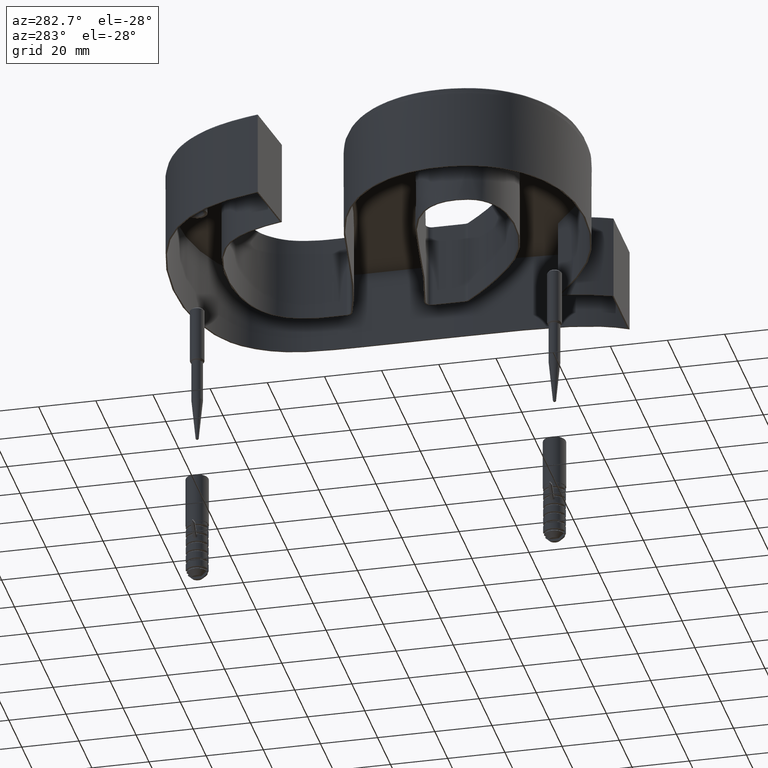
[diagram: clean part render]
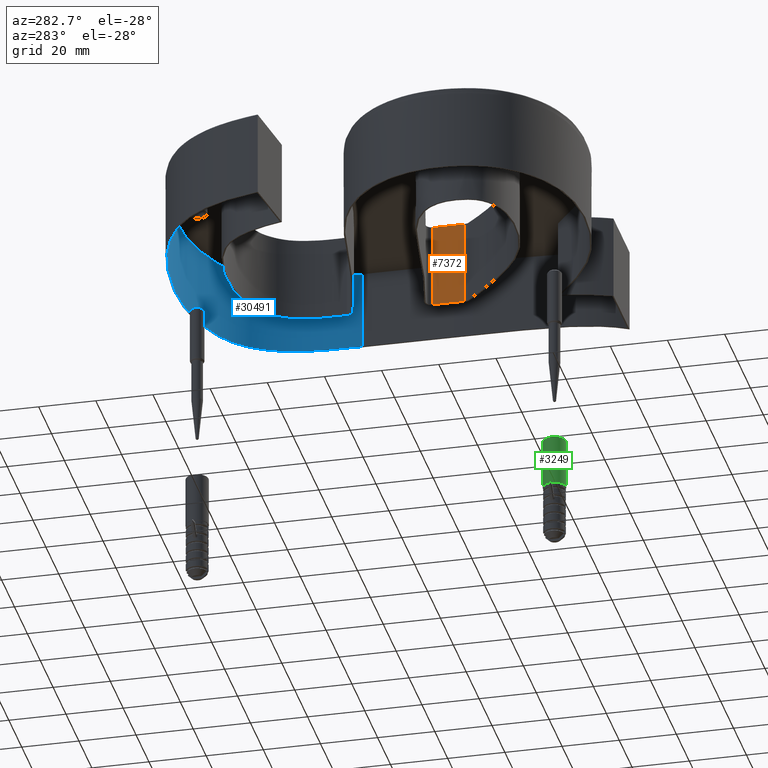
[diagram: same view with three faces highlighted in distinct colors, each labeled with its STEP entity id]
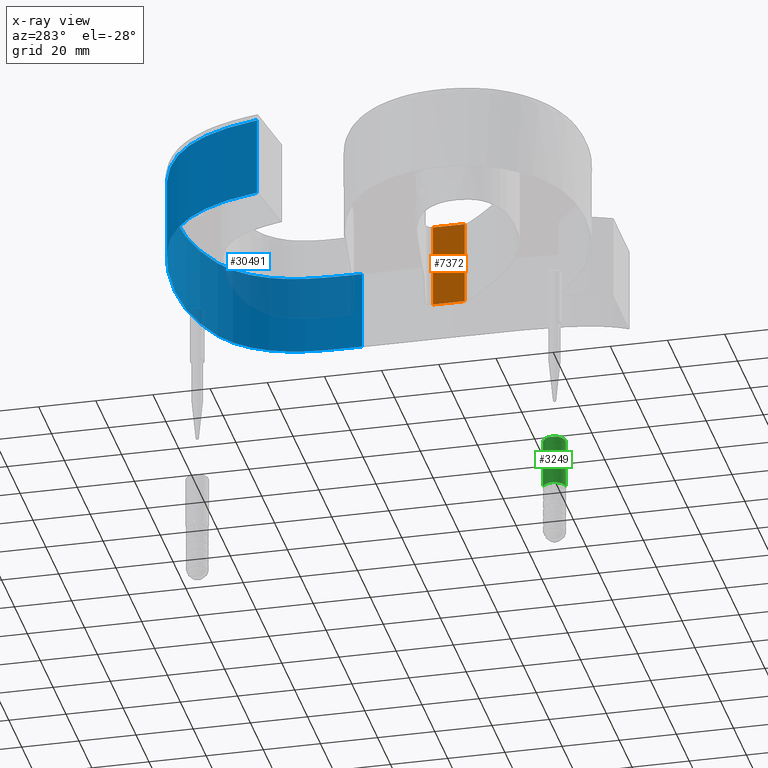
[diagram: x-ray of the same camera — body ghosted, the three highlighted faces saturated]
A machine part, auxiliary view with three faces highlighted in distinct colors.
The next image is the same camera in x-ray (body ghosted, the three faces saturated) — at least one of them is partly hidden behind the body in this view.
Their STEP definitions:

[orange] entity #7372 — the highlighted planar face has unit normal (1, -0, 0).
#469 = CARTESIAN_POINT ( 'NONE',  ( 49.12605448390368700, 53.53852045932474400, 2.000000000000000000 ) ) ;
#839 = FACE_OUTER_BOUND ( 'NONE', #13745, .T. ) ;
#1097 = CARTESIAN_POINT ( 'NONE',  ( 49.12605448390387900, 64.74009537403854600, 1.750000000000000000 ) ) ;
#2037 = ORIENTED_EDGE ( 'NONE', *, *, #12126, .T. ) ;
#2122 = VECTOR ( 'NONE', #24508, 1000.000000000000000 ) ;
#2450 = CARTESIAN_POINT ( 'NONE',  ( 49.12605448390387900, 64.74009537403854600, 1.750000000000000000 ) ) ;
#6886 = LINE ( 'NONE', #15090, #16423 ) ;
#7372 = ADVANCED_FACE ( 'NONE', ( #839 ), #8905, .F. ) ;
#8809 = CARTESIAN_POINT ( 'NONE',  ( 49.12605448390277000, -8.437679609479788300E-013, 2.000000000000000000 ) ) ;
#8905 = PLANE ( 'NONE',  #12277 ) ;
#9987 = DIRECTION ( 'NONE',  ( -0.0000000000000000000, -0.0000000000000000000, 1.000000000000000000 ) ) ;
#10645 = DIRECTION ( 'NONE',  ( 0.0000000000000000000, 0.0000000000000000000, -1.000000000000000000 ) ) ;
#11162 = DIRECTION ( 'NONE',  ( 1.000000000000000000, -1.717556945723084700E-014, 0.0000000000000000000 ) ) ;
#11548 = ORIENTED_EDGE ( 'NONE', *, *, #30105, .T. ) ;
#11678 = ORIENTED_EDGE ( 'NONE', *, *, #11878, .T. ) ;
#11878 = EDGE_CURVE ( 'NONE', #14575, #29408, #20471, .T. ) ;
#12052 = CARTESIAN_POINT ( 'NONE',  ( 49.12605448390368700, 53.53852045932474400, 1.750000000000000000 ) ) ;
#12126 = EDGE_CURVE ( 'NONE', #29408, #30045, #6886, .T. ) ;
#12277 = AXIS2_PLACEMENT_3D ( 'NONE', #8809, #11162, #22980 ) ;
#13745 = EDGE_LOOP ( 'NONE', ( #11548, #11678, #2037, #20247 ) ) ;
#13774 = CARTESIAN_POINT ( 'NONE',  ( 49.12605448390279900, -8.216499045511294300E-013, -28.00000000000000000 ) ) ;
#14099 = VECTOR ( 'NONE', #9987, 1000.000000000000000 ) ;
#14574 = CARTESIAN_POINT ( 'NONE',  ( 49.12605448390368700, 53.53852045932474400, -28.00000000000000000 ) ) ;
#14575 = VERTEX_POINT ( 'NONE', #12052 ) ;
#15090 = CARTESIAN_POINT ( 'NONE',  ( 49.12605448390387900, 64.74009537403854600, 2.000000000000000000 ) ) ;
#16150 = DIRECTION ( 'NONE',  ( -1.672533878779865500E-014, -1.000000000000000000, 0.0000000000000000000 ) ) ;
#16423 = VECTOR ( 'NONE', #10645, 1000.000000000000000 ) ;
#18475 = VERTEX_POINT ( 'NONE', #14574 ) ;
#18681 = EDGE_CURVE ( 'NONE', #30045, #18475, #24009, .T. ) ;
#20247 = ORIENTED_EDGE ( 'NONE', *, *, #18681, .T. ) ;
#20471 = LINE ( 'NONE', #1097, #2122 ) ;
#21420 = VECTOR ( 'NONE', #16150, 1000.000000000000000 ) ;
#22980 = DIRECTION ( 'NONE',  ( 1.717556945723084700E-014, 1.000000000000000000, 0.0000000000000000000 ) ) ;
#24009 = LINE ( 'NONE', #13774, #21420 ) ;
#24508 = DIRECTION ( 'NONE',  ( 1.717556945723084700E-014, 1.000000000000000000, -0.0000000000000000000 ) ) ;
#26643 = LINE ( 'NONE', #469, #14099 ) ;
#28942 = CARTESIAN_POINT ( 'NONE',  ( 49.12605448390387900, 64.74009537403854600, -28.00000000000000000 ) ) ;
#29408 = VERTEX_POINT ( 'NONE', #2450 ) ;
#30045 = VERTEX_POINT ( 'NONE', #28942 ) ;
#30105 = EDGE_CURVE ( 'NONE', #18475, #14575, #26643, .T. ) ;

[blue] entity #30491 — the highlighted face is a freeform B-spline surface patch.
#20 = ORIENTED_EDGE ( 'NONE', *, *, #25818, .T. ) ;
#21 = CARTESIAN_POINT ( 'NONE',  ( 72.94550882655075000, 114.9862656011793400, -28.00000000000000000 ) ) ;
#587 = CARTESIAN_POINT ( 'NONE',  ( 0.6078224708122425000, 146.9854250579580500, -1.694065894508600700E-018 ) ) ;
#698 = CARTESIAN_POINT ( 'NONE',  ( -43.38858832290239300, 105.3928725544253400, 0.0000000000000000000 ) ) ;
#800 = CARTESIAN_POINT ( 'NONE',  ( 31.42106601708694000, 148.1051175848010900, -1.694065894508600700E-018 ) ) ;
#1229 = VECTOR ( 'NONE', #13315, 1000.000000000000000 ) ;
#1252 = CARTESIAN_POINT ( 'NONE',  ( 62.95495964838585200, 135.9527844761829600, 0.0000000000000000000 ) ) ;
#1257 = CARTESIAN_POINT ( 'NONE',  ( -43.38858832290239300, 105.3928725544253400, 0.0000000000000000000 ) ) ;
#1447 = CARTESIAN_POINT ( 'NONE',  ( 0.6078224708122425000, 146.9854250579580500, 0.0000000000000000000 ) ) ;
#1547 = CARTESIAN_POINT ( 'NONE',  ( 43.80662411551692500, 145.6841557657864100, -28.00000000000000000 ) ) ;
#1644 = CARTESIAN_POINT ( 'NONE',  ( -42.64401093891258700, 108.9266519777384600, 0.0000000000000000000 ) ) ;
#1854 = CARTESIAN_POINT ( 'NONE',  ( 72.94550882655075000, 114.9862656011793400, 0.0000000000000000000 ) ) ;
#1944 = CARTESIAN_POINT ( 'NONE',  ( 73.62605448390391400, 95.02528753252936200, 0.0000000000000000000 ) ) ;
#2079 = CARTESIAN_POINT ( 'NONE',  ( 0.6078224708122425000, 146.9854250579580500, -28.00000000000000000 ) ) ;
#2145 = CARTESIAN_POINT ( 'NONE',  ( 71.27015355212454000, 121.9809715691298600, -28.00000000000000000 ) ) ;
#2390 = CARTESIAN_POINT ( 'NONE',  ( 31.42106601708694000, 148.1051175848010900, -28.00000000000000000 ) ) ;
#2576 = VERTEX_POINT ( 'NONE', #1944 ) ;
#3034 = CARTESIAN_POINT ( 'NONE',  ( 48.98902429715126100, 144.0357169140962400, -1.694065894508600700E-018 ) ) ;
#3150 = DIRECTION ( 'NONE',  ( -0.0000000000000000000, -0.0000000000000000000, 1.000000000000000000 ) ) ;
#3349 = CARTESIAN_POINT ( 'NONE',  ( 58.78926860314933100, 139.3461222507065100, -1.694065894508600700E-018 ) ) ;
#3895 = CARTESIAN_POINT ( 'NONE',  ( 58.78926860314933100, 139.3461222507065100, 0.0000000000000000000 ) ) ;
#4003 = CARTESIAN_POINT ( 'NONE',  ( 73.59338994957296600, 96.82751244412108300, -28.00000000000000000 ) ) ;
#4553 = CARTESIAN_POINT ( 'NONE',  ( -43.38858832290239300, 105.3928725544253400, -28.00000000000000000 ) ) ;
#4744 = CARTESIAN_POINT ( 'NONE',  ( 69.24941761392143700, 127.0462464472014100, -28.00000000000000000 ) ) ;
#4914 = VERTEX_POINT ( 'NONE', #1257 ) ;
#5492 = CARTESIAN_POINT ( 'NONE',  ( -18.42771627827526600, 141.1355607838976600, -1.694065894508600700E-018 ) ) ;
#5797 = CARTESIAN_POINT ( 'NONE',  ( 73.59338994957296600, 96.82751244412108300, -1.694065894508600700E-018 ) ) ;
#5952 = CARTESIAN_POINT ( 'NONE',  ( -35.97067597714069400, 125.7152544806190100, 0.0000000000000000000 ) ) ;
#6044 = LINE ( 'NONE', #10440, #27394 ) ;
#6052 = CARTESIAN_POINT ( 'NONE',  ( -18.42771627827526600, 141.1355607838976600, 0.0000000000000000000 ) ) ;
#6254 = CARTESIAN_POINT ( 'NONE',  ( 62.95495964838585200, 135.9527844761829600, -28.00000000000000000 ) ) ;
#6649 = CARTESIAN_POINT ( 'NONE',  ( 73.48215971010782300, 107.7197031735398000, 0.0000000000000000000 ) ) ;
#7005 = CARTESIAN_POINT ( 'NONE',  ( -35.97067597714069400, 125.7152544806190100, -28.00000000000000000 ) ) ;
#7205 = CARTESIAN_POINT ( 'NONE',  ( 48.98902429715126100, 144.0357169140962400, -28.00000000000000000 ) ) ;
#7371 = B_SPLINE_SURFACE_WITH_KNOTS ( 'NONE', 3, 1, ( 
 ( #29822, #27255 ),
 ( #13325, #1644 ),
 ( #8516, #17762 ),
 ( #20012, #5952 ),
 ( #13235, #15712 ),
 ( #15413, #13141 ),
 ( #13036, #6052 ),
 ( #29717, #22492 ),
 ( #15599, #1447 ),
 ( #24885, #22291 ),
 ( #22393, #8613 ),
 ( #27153, #8224 ),
 ( #29608, #8328 ),
 ( #1547, #15509 ),
 ( #24773, #17964 ),
 ( #10575, #25075 ),
 ( #12941, #3895 ),
 ( #6254, #1252 ),
 ( #15316, #10971 ),
 ( #20314, #27641 ),
 ( #2145, #23088 ),
 ( #11165, #1854 ),
 ( #8812, #6649 ),
 ( #29921, #15804 ),
 ( #4003, #9128 ),
 ( #27945, #16094 ) ),
 .UNSPECIFIED., .F., .F., .F.,
 ( 4, 1, 1, 1, 1, 1, 1, 1, 1, 1, 1, 1, 1, 1, 1, 1, 1, 1, 1, 1, 1, 1, 1, 4 ),
 ( 2, 2 ),
 ( 0.003083470287366902500, 0.06538910513186288500, 0.1276947399763588600, 0.1900003748208548600, 0.2211531922431028400, 0.2523060096653508300, 0.3146116445098468000, 0.3769172793543428300, 0.4392229141988388000, 0.5015285490433347700, 0.5638341838878306900, 0.5949870013100786400, 0.6261398187323267100, 0.6572926361545747800, 0.6884454535768227400, 0.7195982709990707000, 0.7507510884213186600, 0.7819039058435666200, 0.8130567232658146800, 0.8442095406880627500, 0.8753623581103107100, 0.9376679929548066300, 0.9688208103770545900, 0.9999736277993026600 ),
 ( 0.0000000000000000000, 1.000000000000000000 ),
 .UNSPECIFIED. ) ;
#7768 = CARTESIAN_POINT ( 'NONE',  ( 54.05899203467933500, 141.9755628180749100, -1.694065894508600700E-018 ) ) ;
#7870 = CARTESIAN_POINT ( 'NONE',  ( 71.27015355212454000, 121.9809715691298600, -1.694065894508600700E-018 ) ) ;
#8020 = CARTESIAN_POINT ( 'NONE',  ( 73.62605448390391400, 95.02528753252936200, -28.00000000000000000 ) ) ;
#8224 = CARTESIAN_POINT ( 'NONE',  ( 31.42106601708694000, 148.1051175848010900, 0.0000000000000000000 ) ) ;
#8267 = EDGE_LOOP ( 'NONE', ( #23530, #16335, #20, #8665 ) ) ;
#8328 = CARTESIAN_POINT ( 'NONE',  ( 38.54371740045034800, 146.9393131774807600, 0.0000000000000000000 ) ) ;
#8516 = CARTESIAN_POINT ( 'NONE',  ( -40.69335720908227900, 115.9211496754336300, -28.00000000000000000 ) ) ;
#8613 = CARTESIAN_POINT ( 'NONE',  ( 22.36800376486144900, 148.6881520615430900, 0.0000000000000000000 ) ) ;
#8665 = ORIENTED_EDGE ( 'NONE', *, *, #29618, .T. ) ;
#8812 = CARTESIAN_POINT ( 'NONE',  ( 73.48215971010782300, 107.7197031735398000, -28.00000000000000000 ) ) ;
#9071 = CARTESIAN_POINT ( 'NONE',  ( -42.64401093891258700, 108.9266519777384600, -28.00000000000000000 ) ) ;
#9128 = CARTESIAN_POINT ( 'NONE',  ( 73.59338994957296600, 96.82751244412108300, 0.0000000000000000000 ) ) ;
#9173 = CARTESIAN_POINT ( 'NONE',  ( 11.42911205131125200, 148.2662833601964700, -28.00000000000000000 ) ) ;
#9365 = CARTESIAN_POINT ( 'NONE',  ( -24.55206825513793900, 137.3325213723907200, -28.00000000000000000 ) ) ;
#10440 = CARTESIAN_POINT ( 'NONE',  ( 73.62605448390391400, 95.02528753252936200, -28.00000000000000000 ) ) ;
#10575 = CARTESIAN_POINT ( 'NONE',  ( 54.05899203467933500, 141.9755628180749100, -28.00000000000000000 ) ) ;
#10624 = CARTESIAN_POINT ( 'NONE',  ( 73.57505782937015200, 100.4171166393361100, -1.694065894508600700E-018 ) ) ;
#10971 = CARTESIAN_POINT ( 'NONE',  ( 66.45398579461945600, 131.7730297934745600, 0.0000000000000000000 ) ) ;
#11165 = CARTESIAN_POINT ( 'NONE',  ( 72.94550882655075000, 114.9862656011793400, -28.00000000000000000 ) ) ;
#11629 = CARTESIAN_POINT ( 'NONE',  ( 71.27015355212454000, 121.9809715691298600, -28.00000000000000000 ) ) ;
#11737 = CARTESIAN_POINT ( 'NONE',  ( -9.964916380131144900, 144.4978598208765300, -28.00000000000000000 ) ) ;
#11909 = FACE_OUTER_BOUND ( 'NONE', #8267, .T. ) ;
#12393 = CARTESIAN_POINT ( 'NONE',  ( 22.36800376486144900, 148.6881520615430900, -1.694065894508600700E-018 ) ) ;
#12789 = CARTESIAN_POINT ( 'NONE',  ( -24.55206825513793900, 137.3325213723907200, -1.694065894508600700E-018 ) ) ;
#12941 = CARTESIAN_POINT ( 'NONE',  ( 58.78926860314933100, 139.3461222507065100, -28.00000000000000000 ) ) ;
#13023 = VERTEX_POINT ( 'NONE', #4553 ) ;
#13036 = CARTESIAN_POINT ( 'NONE',  ( -18.42771627827526600, 141.1355607838976600, -28.00000000000000000 ) ) ;
#13141 = CARTESIAN_POINT ( 'NONE',  ( -24.55206825513793900, 137.3325213723907200, 0.0000000000000000000 ) ) ;
#13235 = CARTESIAN_POINT ( 'NONE',  ( -30.15048796198508500, 132.7248357069183000, -28.00000000000000000 ) ) ;
#13315 = DIRECTION ( 'NONE',  ( -0.0000000000000000000, -0.0000000000000000000, 1.000000000000000000 ) ) ;
#13325 = CARTESIAN_POINT ( 'NONE',  ( -42.64401093891258700, 108.9266519777384600, -28.00000000000000000 ) ) ;
#13660 = CARTESIAN_POINT ( 'NONE',  ( -43.38858832290239300, 105.3928725544253400, -28.00000000000000000 ) ) ;
#13969 = CARTESIAN_POINT ( 'NONE',  ( 22.36800376486144900, 148.6881520615430900, -28.00000000000000000 ) ) ;
#14063 = CARTESIAN_POINT ( 'NONE',  ( 66.45398579461945600, 131.7730297934745600, -28.00000000000000000 ) ) ;
#15067 = CARTESIAN_POINT ( 'NONE',  ( 11.42911205131125200, 148.2662833601964700, -1.694065894508600700E-018 ) ) ;
#15269 = CARTESIAN_POINT ( 'NONE',  ( 73.48215971010782300, 107.7197031735398000, -1.694065894508600700E-018 ) ) ;
#15316 = CARTESIAN_POINT ( 'NONE',  ( 66.45398579461945600, 131.7730297934745600, -28.00000000000000000 ) ) ;
#15413 = CARTESIAN_POINT ( 'NONE',  ( -24.55206825513793900, 137.3325213723907200, -28.00000000000000000 ) ) ;
#15509 = CARTESIAN_POINT ( 'NONE',  ( 43.80662411551692500, 145.6841557657864100, 0.0000000000000000000 ) ) ;
#15527 = LINE ( 'NONE', #27428, #1229 ) ;
#15599 = CARTESIAN_POINT ( 'NONE',  ( 0.6078224708122425000, 146.9854250579580500, -28.00000000000000000 ) ) ;
#15712 = CARTESIAN_POINT ( 'NONE',  ( -30.15048796198508500, 132.7248357069183000, 0.0000000000000000000 ) ) ;
#15804 = CARTESIAN_POINT ( 'NONE',  ( 73.57505782937015200, 100.4171166393361100, 0.0000000000000000000 ) ) ;
#15845 = B_SPLINE_CURVE_WITH_KNOTS ( 'NONE', 3,
 ( #698, #19562, #26796, #19365, #17321, #12789, #5492, #29155, #587, #15067, #12393, #800, #17107, #17413, #3034, #7768, #3349, #24204, #26578, #21924, #7870, #26685, #15269, #10624, #5797, #27095 ),
 .UNSPECIFIED., .F., .F.,
 ( 4, 1, 1, 1, 1, 1, 1, 1, 1, 1, 1, 1, 1, 1, 1, 1, 1, 1, 1, 1, 1, 1, 1, 4 ),
 ( 0.003083470287366902500, 0.06538910513186288500, 0.1276947399763588600, 0.1900003748208548600, 0.2211531922431028400, 0.2523060096653508300, 0.3146116445098468000, 0.3769172793543428300, 0.4392229141988388000, 0.5015285490433347700, 0.5638341838878306900, 0.5949870013100786400, 0.6261398187323267100, 0.6572926361545747800, 0.6884454535768227400, 0.7195982709990707000, 0.7507510884213186600, 0.7819039058435666200, 0.8130567232658146800, 0.8442095406880627500, 0.8753623581103107100, 0.9376679929548066300, 0.9688208103770545900, 0.9999736277993026600 ),
 .UNSPECIFIED. ) ;
#16094 = CARTESIAN_POINT ( 'NONE',  ( 73.62605448390391400, 95.02528753252936200, 0.0000000000000000000 ) ) ;
#16106 = EDGE_CURVE ( 'NONE', #4914, #2576, #15845, .T. ) ;
#16139 = CARTESIAN_POINT ( 'NONE',  ( 62.95495964838585200, 135.9527844761829600, -28.00000000000000000 ) ) ;
#16335 = ORIENTED_EDGE ( 'NONE', *, *, #19213, .F. ) ;
#16446 = CARTESIAN_POINT ( 'NONE',  ( 73.48215971010782300, 107.7197031735398000, -28.00000000000000000 ) ) ;
#17107 = CARTESIAN_POINT ( 'NONE',  ( 38.54371740045034800, 146.9393131774807600, -1.694065894508600700E-018 ) ) ;
#17321 = CARTESIAN_POINT ( 'NONE',  ( -30.15048796198508500, 132.7248357069183000, -1.694065894508600700E-018 ) ) ;
#17413 = CARTESIAN_POINT ( 'NONE',  ( 43.80662411551692500, 145.6841557657864100, -1.694065894508600700E-018 ) ) ;
#17762 = CARTESIAN_POINT ( 'NONE',  ( -40.69335720908227900, 115.9211496754336300, 0.0000000000000000000 ) ) ;
#17964 = CARTESIAN_POINT ( 'NONE',  ( 48.98902429715126100, 144.0357169140962400, 0.0000000000000000000 ) ) ;
#18803 = CARTESIAN_POINT ( 'NONE',  ( 73.57505782937015200, 100.4171166393361100, -28.00000000000000000 ) ) ;
#19213 = EDGE_CURVE ( 'NONE', #13023, #4914, #15527, .T. ) ;
#19365 = CARTESIAN_POINT ( 'NONE',  ( -35.97067597714069400, 125.7152544806190100, -1.694065894508600700E-018 ) ) ;
#19562 = CARTESIAN_POINT ( 'NONE',  ( -42.64401093891258700, 108.9266519777384600, -1.694065894508600700E-018 ) ) ;
#20012 = CARTESIAN_POINT ( 'NONE',  ( -35.97067597714069400, 125.7152544806190100, -28.00000000000000000 ) ) ;
#20314 = CARTESIAN_POINT ( 'NONE',  ( 69.24941761392143700, 127.0462464472014100, -28.00000000000000000 ) ) ;
#21924 = CARTESIAN_POINT ( 'NONE',  ( 69.24941761392143700, 127.0462464472014100, -1.694065894508600700E-018 ) ) ;
#22291 = CARTESIAN_POINT ( 'NONE',  ( 11.42911205131125200, 148.2662833601964700, 0.0000000000000000000 ) ) ;
#22393 = CARTESIAN_POINT ( 'NONE',  ( 22.36800376486144900, 148.6881520615430900, -28.00000000000000000 ) ) ;
#22492 = CARTESIAN_POINT ( 'NONE',  ( -9.964916380131144900, 144.4978598208765300, 0.0000000000000000000 ) ) ;
#23088 = CARTESIAN_POINT ( 'NONE',  ( 71.27015355212454000, 121.9809715691298600, 0.0000000000000000000 ) ) ;
#23226 = CARTESIAN_POINT ( 'NONE',  ( -30.15048796198508500, 132.7248357069183000, -28.00000000000000000 ) ) ;
#23322 = CARTESIAN_POINT ( 'NONE',  ( 73.62605448390391400, 95.02528753252936200, -28.00000000000000000 ) ) ;
#23426 = CARTESIAN_POINT ( 'NONE',  ( -40.69335720908227900, 115.9211496754336300, -28.00000000000000000 ) ) ;
#23518 = CARTESIAN_POINT ( 'NONE',  ( 73.59338994957296600, 96.82751244412108300, -28.00000000000000000 ) ) ;
#23530 = ORIENTED_EDGE ( 'NONE', *, *, #16106, .F. ) ;
#24204 = CARTESIAN_POINT ( 'NONE',  ( 62.95495964838585200, 135.9527844761829600, -1.694065894508600700E-018 ) ) ;
#24773 = CARTESIAN_POINT ( 'NONE',  ( 48.98902429715126100, 144.0357169140962400, -28.00000000000000000 ) ) ;
#24885 = CARTESIAN_POINT ( 'NONE',  ( 11.42911205131125200, 148.2662833601964700, -28.00000000000000000 ) ) ;
#25075 = CARTESIAN_POINT ( 'NONE',  ( 54.05899203467933500, 141.9755628180749100, 0.0000000000000000000 ) ) ;
#25282 = VERTEX_POINT ( 'NONE', #8020 ) ;
#25616 = CARTESIAN_POINT ( 'NONE',  ( 58.78926860314933100, 139.3461222507065100, -28.00000000000000000 ) ) ;
#25720 = CARTESIAN_POINT ( 'NONE',  ( -18.42771627827526600, 141.1355607838976600, -28.00000000000000000 ) ) ;
#25818 = EDGE_CURVE ( 'NONE', #13023, #25282, #26197, .T. ) ;
#26197 = B_SPLINE_CURVE_WITH_KNOTS ( 'NONE', 3,
 ( #13660, #9071, #23426, #7005, #23226, #9365, #25720, #11737, #2079, #9173, #13969, #2390, #27892, #28198, #7205, #28089, #25616, #16139, #14063, #4744, #11629, #21, #16446, #18803, #23518, #23322 ),
 .UNSPECIFIED., .F., .F.,
 ( 4, 1, 1, 1, 1, 1, 1, 1, 1, 1, 1, 1, 1, 1, 1, 1, 1, 1, 1, 1, 1, 1, 1, 4 ),
 ( 0.003083470287366902500, 0.06538910513186288500, 0.1276947399763588600, 0.1900003748208548600, 0.2211531922431028400, 0.2523060096653508300, 0.3146116445098468000, 0.3769172793543428300, 0.4392229141988388000, 0.5015285490433347700, 0.5638341838878306900, 0.5949870013100786400, 0.6261398187323267100, 0.6572926361545747800, 0.6884454535768227400, 0.7195982709990707000, 0.7507510884213186600, 0.7819039058435666200, 0.8130567232658146800, 0.8442095406880627500, 0.8753623581103107100, 0.9376679929548066300, 0.9688208103770545900, 0.9999736277993026600 ),
 .UNSPECIFIED. ) ;
#26578 = CARTESIAN_POINT ( 'NONE',  ( 66.45398579461945600, 131.7730297934745600, -1.694065894508600700E-018 ) ) ;
#26685 = CARTESIAN_POINT ( 'NONE',  ( 72.94550882655075000, 114.9862656011793400, -1.694065894508600700E-018 ) ) ;
#26796 = CARTESIAN_POINT ( 'NONE',  ( -40.69335720908227900, 115.9211496754336300, -1.694065894508600700E-018 ) ) ;
#27095 = CARTESIAN_POINT ( 'NONE',  ( 73.62605448390391400, 95.02528753252936200, 0.0000000000000000000 ) ) ;
#27153 = CARTESIAN_POINT ( 'NONE',  ( 31.42106601708694000, 148.1051175848010900, -28.00000000000000000 ) ) ;
#27255 = CARTESIAN_POINT ( 'NONE',  ( -43.38858832290239300, 105.3928725544253500, 0.0000000000000000000 ) ) ;
#27394 = VECTOR ( 'NONE', #3150, 1000.000000000000000 ) ;
#27428 = CARTESIAN_POINT ( 'NONE',  ( -43.38858832290239300, 105.3928725544253400, -28.00000000000000000 ) ) ;
#27641 = CARTESIAN_POINT ( 'NONE',  ( 69.24941761392143700, 127.0462464472014100, 0.0000000000000000000 ) ) ;
#27892 = CARTESIAN_POINT ( 'NONE',  ( 38.54371740045034800, 146.9393131774807600, -28.00000000000000000 ) ) ;
#27945 = CARTESIAN_POINT ( 'NONE',  ( 73.62605448390391400, 95.02528753252936200, -28.00000000000000000 ) ) ;
#28089 = CARTESIAN_POINT ( 'NONE',  ( 54.05899203467933500, 141.9755628180749100, -28.00000000000000000 ) ) ;
#28198 = CARTESIAN_POINT ( 'NONE',  ( 43.80662411551692500, 145.6841557657864100, -28.00000000000000000 ) ) ;
#29155 = CARTESIAN_POINT ( 'NONE',  ( -9.964916380131144900, 144.4978598208765300, -1.694065894508600700E-018 ) ) ;
#29608 = CARTESIAN_POINT ( 'NONE',  ( 38.54371740045034800, 146.9393131774807600, -28.00000000000000000 ) ) ;
#29618 = EDGE_CURVE ( 'NONE', #25282, #2576, #6044, .T. ) ;
#29717 = CARTESIAN_POINT ( 'NONE',  ( -9.964916380131144900, 144.4978598208765300, -28.00000000000000000 ) ) ;
#29822 = CARTESIAN_POINT ( 'NONE',  ( -43.38858832290239300, 105.3928725544253500, -28.00000000000000000 ) ) ;
#29921 = CARTESIAN_POINT ( 'NONE',  ( 73.57505782937015200, 100.4171166393361100, -28.00000000000000000 ) ) ;
#30491 = ADVANCED_FACE ( 'NONE', ( #11909 ), #7371, .T. ) ;

[green] entity #3249 — the highlighted cylindrical surface (edge-blend (fillet) strip) has radius 4 mm, axis along (-0, 0, -1).
#152 = EDGE_CURVE ( 'NONE', #30409, #9036, #26520, .T. ) ;
#255 = ORIENTED_EDGE ( 'NONE', *, *, #652, .F. ) ;
#512 = ORIENTED_EDGE ( 'NONE', *, *, #15209, .F. ) ;
#652 = EDGE_CURVE ( 'NONE', #9036, #25914, #25752, .T. ) ;
#902 = VERTEX_POINT ( 'NONE', #17572 ) ;
#1646 = VERTEX_POINT ( 'NONE', #18226 ) ;
#1655 = CIRCLE ( 'NONE', #21647, 4.000000000000000000 ) ;
#2172 = LINE ( 'NONE', #20035, #27209 ) ;
#2902 = CIRCLE ( 'NONE', #20412, 4.000000000000000000 ) ;
#3249 = ADVANCED_FACE ( 'NONE', ( #19668 ), #13399, .T. ) ;
#4057 = DIRECTION ( 'NONE',  ( -0.0000000000000000000, -0.0000000000000000000, -1.000000000000000000 ) ) ;
#4861 = EDGE_CURVE ( 'NONE', #1646, #902, #1655, .T. ) ;
#5354 = DIRECTION ( 'NONE',  ( -0.0000000000000000000, -0.0000000000000000000, -1.000000000000000000 ) ) ;
#6186 = CARTESIAN_POINT ( 'NONE',  ( -3.879513447468139600, -0.9743589743589746700, -17.80000000000000100 ) ) ;
#7366 = ORIENTED_EDGE ( 'NONE', *, *, #23462, .F. ) ;
#7773 = AXIS2_PLACEMENT_3D ( 'NONE', #24272, #5354, #12148 ) ;
#8306 = CARTESIAN_POINT ( 'NONE',  ( 0.0000000000000000000, 0.0000000000000000000, -17.80000000000000100 ) ) ;
#9036 = VERTEX_POINT ( 'NONE', #6186 ) ;
#9865 = CARTESIAN_POINT ( 'NONE',  ( -4.000000000000000000, 0.0000000000000000000, -17.80000000000000100 ) ) ;
#11034 = ORIENTED_EDGE ( 'NONE', *, *, #4861, .T. ) ;
#11133 = DIRECTION ( 'NONE',  ( -0.0000000000000000000, -0.0000000000000000000, -1.000000000000000000 ) ) ;
#11785 = VERTEX_POINT ( 'NONE', #13076 ) ;
#12148 = DIRECTION ( 'NONE',  ( -1.000000000000000000, 0.0000000000000000000, 0.0000000000000000000 ) ) ;
#13076 = CARTESIAN_POINT ( 'NONE',  ( 4.000000000000000000, 4.898587196589412800E-016, -17.80000000000000100 ) ) ;
#13399 = CYLINDRICAL_SURFACE ( 'NONE', #29953, 4.000000000000000000 ) ;
#13400 = CARTESIAN_POINT ( 'NONE',  ( 0.0000000000000000000, 0.0000000000000000000, -38.00000000000000000 ) ) ;
#13773 = DIRECTION ( 'NONE',  ( -1.000000000000000000, 0.0000000000000000000, 0.0000000000000000000 ) ) ;
#15203 = DIRECTION ( 'NONE',  ( -0.0000000000000000000, -0.0000000000000000000, -1.000000000000000000 ) ) ;
#15209 = EDGE_CURVE ( 'NONE', #11785, #30409, #2902, .T. ) ;
#15314 = VECTOR ( 'NONE', #18712, 1000.000000000000000 ) ;
#15465 = EDGE_CURVE ( 'NONE', #902, #25914, #2172, .T. ) ;
#15962 = DIRECTION ( 'NONE',  ( -1.000000000000000000, 0.0000000000000000000, 0.0000000000000000000 ) ) ;
#16616 = AXIS2_PLACEMENT_3D ( 'NONE', #8306, #15203, #27025 ) ;
#17572 = CARTESIAN_POINT ( 'NONE',  ( -4.000000000000000000, 0.0000000000000000000, -0.1999999999999987900 ) ) ;
#18226 = CARTESIAN_POINT ( 'NONE',  ( 4.000000000000000000, 4.898587196589412800E-016, -0.1999999999999987900 ) ) ;
#18712 = DIRECTION ( 'NONE',  ( -0.0000000000000000000, -0.0000000000000000000, -1.000000000000000000 ) ) ;
#19668 = FACE_OUTER_BOUND ( 'NONE', #21619, .T. ) ;
#20035 = CARTESIAN_POINT ( 'NONE',  ( -4.000000000000000000, 0.0000000000000000000, -38.00000000000000000 ) ) ;
#20412 = AXIS2_PLACEMENT_3D ( 'NONE', #23141, #4057, #13773 ) ;
#21619 = EDGE_LOOP ( 'NONE', ( #7366, #11034, #22949, #255, #29076, #512 ) ) ;
#21647 = AXIS2_PLACEMENT_3D ( 'NONE', #22189, #29416, #29208 ) ;
#22189 = CARTESIAN_POINT ( 'NONE',  ( 0.0000000000000000000, 0.0000000000000000000, -0.1999999999999987900 ) ) ;
#22835 = CARTESIAN_POINT ( 'NONE',  ( 4.000000000000000000, 4.898587196589412800E-016, -38.00000000000000000 ) ) ;
#22949 = ORIENTED_EDGE ( 'NONE', *, *, #15465, .T. ) ;
#23141 = CARTESIAN_POINT ( 'NONE',  ( 0.0000000000000000000, 0.0000000000000000000, -17.80000000000000100 ) ) ;
#23462 = EDGE_CURVE ( 'NONE', #1646, #11785, #29311, .T. ) ;
#24272 = CARTESIAN_POINT ( 'NONE',  ( 0.0000000000000000000, 0.0000000000000000000, -17.80000000000000100 ) ) ;
#25501 = CARTESIAN_POINT ( 'NONE',  ( 3.879513447468139600, -0.9743589743589746700, -17.80000000000000100 ) ) ;
#25752 = CIRCLE ( 'NONE', #16616, 4.000000000000000000 ) ;
#25914 = VERTEX_POINT ( 'NONE', #9865 ) ;
#26520 = CIRCLE ( 'NONE', #7773, 4.000000000000000000 ) ;
#27025 = DIRECTION ( 'NONE',  ( -1.000000000000000000, 0.0000000000000000000, 0.0000000000000000000 ) ) ;
#27209 = VECTOR ( 'NONE', #29223, 1000.000000000000000 ) ;
#29076 = ORIENTED_EDGE ( 'NONE', *, *, #152, .F. ) ;
#29208 = DIRECTION ( 'NONE',  ( 1.000000000000000000, 0.0000000000000000000, 0.0000000000000000000 ) ) ;
#29223 = DIRECTION ( 'NONE',  ( -0.0000000000000000000, -0.0000000000000000000, -1.000000000000000000 ) ) ;
#29311 = LINE ( 'NONE', #22835, #15314 ) ;
#29416 = DIRECTION ( 'NONE',  ( -0.0000000000000000000, -0.0000000000000000000, -1.000000000000000000 ) ) ;
#29953 = AXIS2_PLACEMENT_3D ( 'NONE', #13400, #11133, #15962 ) ;
#30409 = VERTEX_POINT ( 'NONE', #25501 ) ;